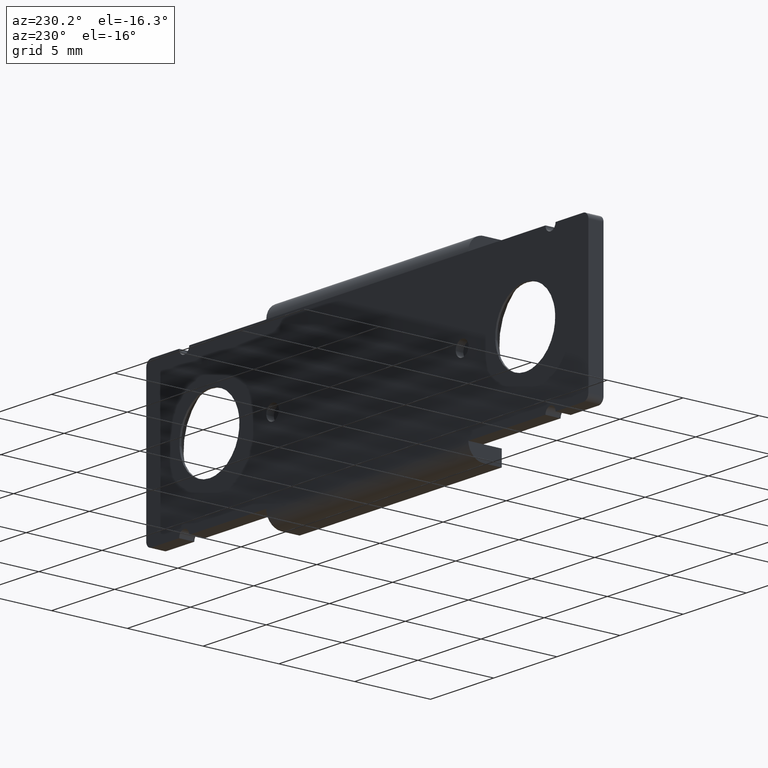
[diagram: clean part render]
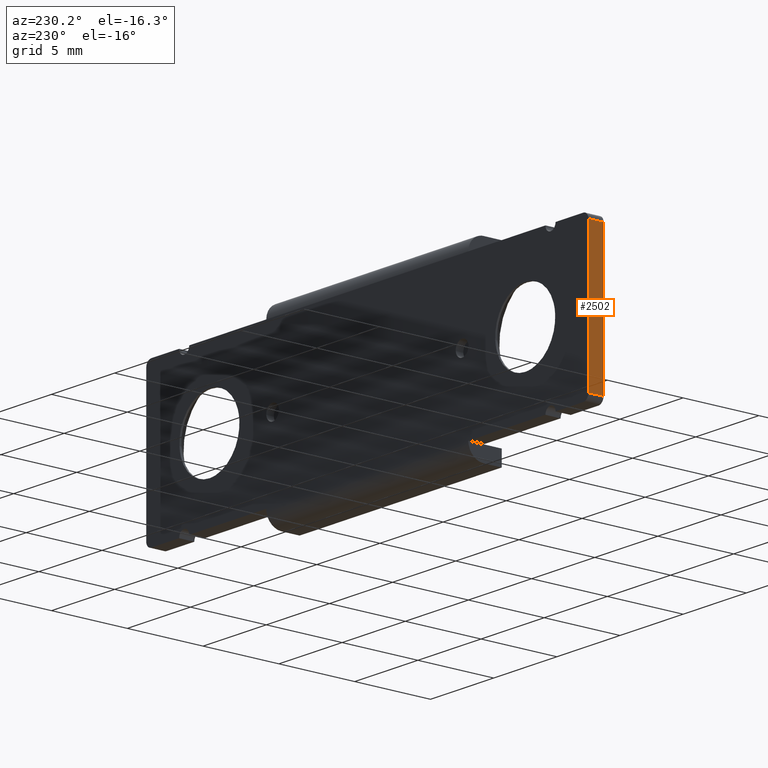
[diagram: same view with one face highlighted and labeled with its STEP entity id]
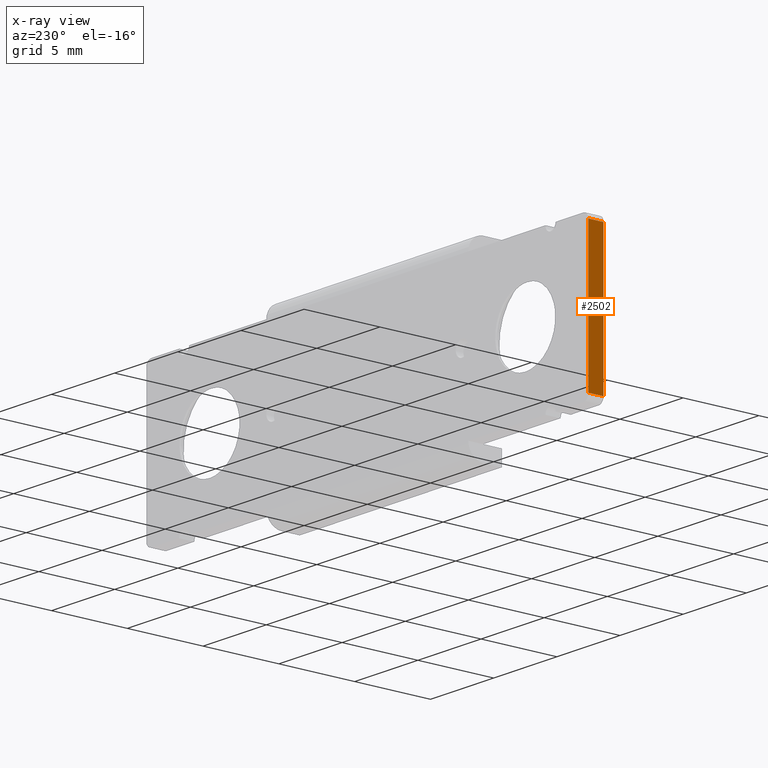
[diagram: x-ray of the same camera — body ghosted, the highlighted face saturated]
A machine part, auxiliary view. The second image highlights one B-rep face of the part: STEP entity #2502.
The next image is the same camera in x-ray: the body ghosted, the highlighted face saturated — about 0% of this face is hidden behind the body in this view.
In plain terms, the highlighted face is a freeform B-spline surface patch.
Its self-contained STEP definition (entity closure, byte-faithful):
#1735=CARTESIAN_POINT('',(-17.499999499999848,0.0,-4.600000000000080));
#1736=VERTEX_POINT('',#1735);
#1750=CARTESIAN_POINT('',(-17.499999500000001,0.0,4.600000000000000));
#1751=VERTEX_POINT('',#1750);
#1752=CARTESIAN_POINT('',(-17.499999500000001,0.0,4.600000000000000));
#1753=CARTESIAN_POINT('',(-17.499999499999848,0.0,-4.600000000000080));
#1754=QUASI_UNIFORM_CURVE('',1,(#1752,#1753),.UNSPECIFIED.,.F.,.U.);
#1755=EDGE_CURVE('',#1751,#1736,#1754,.T.);
#2458=CARTESIAN_POINT('',(-17.499999499999848,-1.0,-4.600000000000080));
#2459=VERTEX_POINT('',#2458);
#2473=CARTESIAN_POINT('',(-17.499999499999848,-1.0,-4.600000000000080));
#2474=CARTESIAN_POINT('',(-17.499999499999848,0.0,-4.600000000000080));
#2475=QUASI_UNIFORM_CURVE('',1,(#2473,#2474),.UNSPECIFIED.,.F.,.U.);
#2476=EDGE_CURVE('',#2459,#1736,#2475,.T.);
#2481=CARTESIAN_POINT('',(-17.499999499999848,-1.049949998061806,5.059539982168618));
#2482=CARTESIAN_POINT('',(-17.499999499999848,-1.049949998061806,-5.059540228931928));
#2483=CARTESIAN_POINT('',(-17.499999499999848,0.049950024883896,5.059539982168618));
#2484=CARTESIAN_POINT('',(-17.499999499999848,0.049950024883896,-5.059540228931928));
#2485=B_SPLINE_SURFACE_WITH_KNOTS('',1,1,((#2481,#2483),(#2482,#2484)),.UNSPECIFIED.,.F.,.F.,.U.,(2,2),(2,2),(0.0,10.119080211100551),(0.041708334948495,0.958291687403247),.UNSPECIFIED.);
#2486=ORIENTED_EDGE('',*,*,#1755,.T.);
#2487=ORIENTED_EDGE('',*,*,#2476,.F.);
#2488=CARTESIAN_POINT('',(-17.499999500000001,-1.0,4.600000000000000));
#2489=VERTEX_POINT('',#2488);
#2490=CARTESIAN_POINT('',(-17.499999500000001,-1.0,4.600000000000000));
#2491=CARTESIAN_POINT('',(-17.499999499999848,-1.0,-4.600000000000080));
#2492=QUASI_UNIFORM_CURVE('',1,(#2490,#2491),.UNSPECIFIED.,.F.,.U.);
#2493=EDGE_CURVE('',#2489,#2459,#2492,.T.);
#2494=ORIENTED_EDGE('',*,*,#2493,.F.);
#2495=CARTESIAN_POINT('',(-17.499999500000001,-1.0,4.600000000000000));
#2496=CARTESIAN_POINT('',(-17.499999500000001,0.0,4.600000000000000));
#2497=QUASI_UNIFORM_CURVE('',1,(#2495,#2496),.UNSPECIFIED.,.F.,.U.);
#2498=EDGE_CURVE('',#2489,#1751,#2497,.T.);
#2499=ORIENTED_EDGE('',*,*,#2498,.T.);
#2500=EDGE_LOOP('',(#2486,#2487,#2494,#2499));
#2501=FACE_OUTER_BOUND('',#2500,.T.);
#2502=ADVANCED_FACE('',(#2501),#2485,.F.);